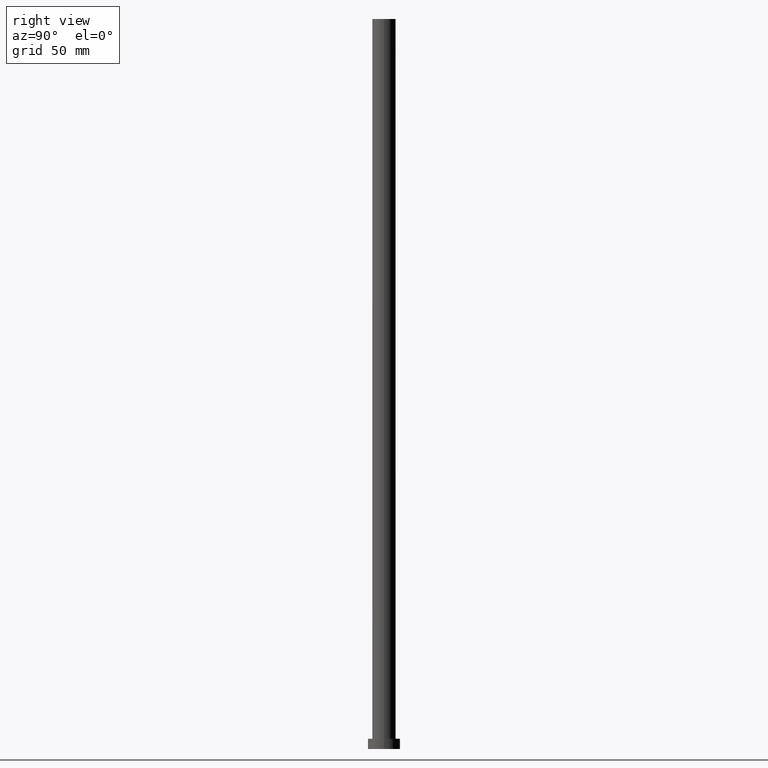
[diagram: clean part render]
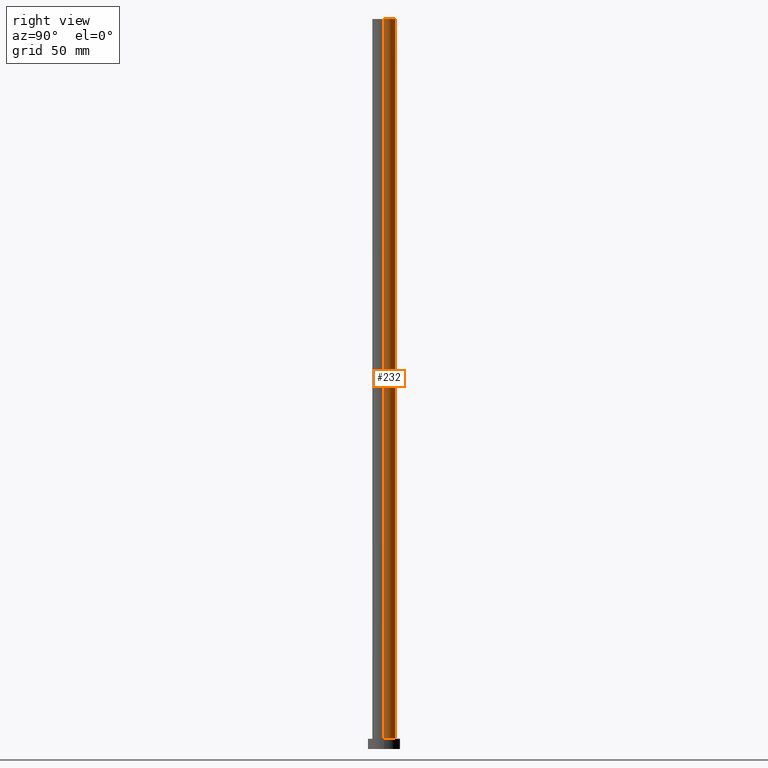
[diagram: same view with one face highlighted and labeled with its STEP entity id]
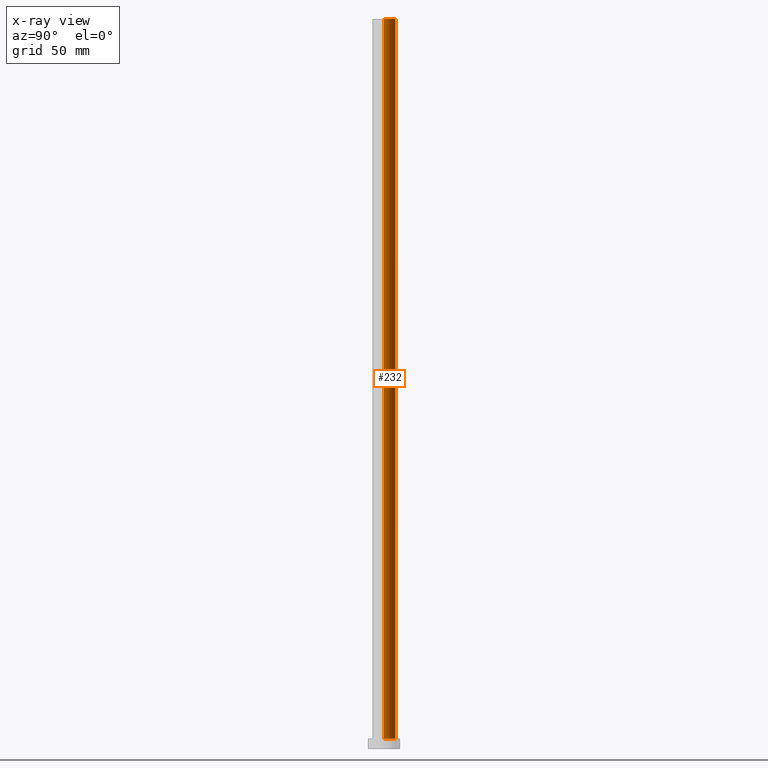
[diagram: x-ray of the same camera — body ghosted, the highlighted face saturated]
A machine part, right view. The second image highlights one B-rep face of the part: STEP entity #232.
The next image is the same camera in x-ray: the body ghosted, the highlighted face saturated — about 0% of this face is hidden behind the body in this view.
In plain terms, the highlighted cylindrical surface (edge-blend (fillet) strip) has radius 8 mm, axis along (-0, -0, -1).
Its self-contained STEP definition (entity closure, byte-faithful):
#15 = DIRECTION ( 'NONE',  ( -0.000000000000000000, -0.000000000000000000, -1.000000000000000000 ) ) ;
#41 = CIRCLE ( 'NONE', #154, 8.000000000000000000 ) ;
#49 = CARTESIAN_POINT ( 'NONE',  ( -8.000000000000000000, 0.000000000000000000, 500.0000000000000000 ) ) ;
#52 = EDGE_CURVE ( 'NONE', #234, #224, #92, .T. ) ;
#56 = ORIENTED_EDGE ( 'NONE', *, *, #78, .T. ) ;
#64 = VERTEX_POINT ( 'NONE', #132 ) ;
#70 = CARTESIAN_POINT ( 'NONE',  ( 0.000000000000000000, 0.000000000000000000, 500.0000000000000000 ) ) ;
#78 = EDGE_CURVE ( 'NONE', #249, #224, #201, .T. ) ;
#91 = DIRECTION ( 'NONE',  ( -0.000000000000000000, -0.000000000000000000, -1.000000000000000000 ) ) ;
#92 = LINE ( 'NONE', #189, #99 ) ;
#98 = ORIENTED_EDGE ( 'NONE', *, *, #110, .T. ) ;
#99 = VECTOR ( 'NONE', #15, 1000.000000000000000 ) ;
#106 = DIRECTION ( 'NONE',  ( 1.000000000000000000, 0.000000000000000000, 0.000000000000000000 ) ) ;
#108 = CARTESIAN_POINT ( 'NONE',  ( 0.000000000000000000, 0.000000000000000000, 7.000000000000000000 ) ) ;
#110 = EDGE_CURVE ( 'NONE', #64, #249, #222, .T. ) ;
#111 = FACE_OUTER_BOUND ( 'NONE', #147, .T. ) ;
#130 = DIRECTION ( 'NONE',  ( 0.000000000000000000, 0.000000000000000000, 1.000000000000000000 ) ) ;
#132 = CARTESIAN_POINT ( 'NONE',  ( 8.000000000000000000, 9.797174393178825657E-16, 500.0000000000000000 ) ) ;
#139 = CARTESIAN_POINT ( 'NONE',  ( 8.000000000000000000, 9.797174393178825657E-16, 7.000000000000000000 ) ) ;
#140 = DIRECTION ( 'NONE',  ( 1.000000000000000000, 0.000000000000000000, 0.000000000000000000 ) ) ;
#145 = DIRECTION ( 'NONE',  ( -0.000000000000000000, -0.000000000000000000, -1.000000000000000000 ) ) ;
#147 = EDGE_LOOP ( 'NONE', ( #157, #98, #56, #208 ) ) ;
#154 = AXIS2_PLACEMENT_3D ( 'NONE', #168, #202, #106 ) ;
#157 = ORIENTED_EDGE ( 'NONE', *, *, #166, .F. ) ;
#166 = EDGE_CURVE ( 'NONE', #64, #234, #41, .T. ) ;
#168 = CARTESIAN_POINT ( 'NONE',  ( 0.000000000000000000, 0.000000000000000000, 500.0000000000000000 ) ) ;
#173 = AXIS2_PLACEMENT_3D ( 'NONE', #108, #130, #140 ) ;
#181 = CARTESIAN_POINT ( 'NONE',  ( 8.000000000000000000, 9.797174393178825657E-16, 500.0000000000000000 ) ) ;
#189 = CARTESIAN_POINT ( 'NONE',  ( -8.000000000000000000, 0.000000000000000000, 500.0000000000000000 ) ) ;
#201 = CIRCLE ( 'NONE', #173, 8.000000000000000000 ) ;
#202 = DIRECTION ( 'NONE',  ( 0.000000000000000000, 0.000000000000000000, 1.000000000000000000 ) ) ;
#203 = CARTESIAN_POINT ( 'NONE',  ( -8.000000000000000000, 0.000000000000000000, 7.000000000000000000 ) ) ;
#208 = ORIENTED_EDGE ( 'NONE', *, *, #52, .F. ) ;
#213 = AXIS2_PLACEMENT_3D ( 'NONE', #70, #145, #229 ) ;
#217 = VECTOR ( 'NONE', #91, 1000.000000000000000 ) ;
#222 = LINE ( 'NONE', #181, #217 ) ;
#224 = VERTEX_POINT ( 'NONE', #203 ) ;
#229 = DIRECTION ( 'NONE',  ( -1.000000000000000000, 0.000000000000000000, 0.000000000000000000 ) ) ;
#232 = ADVANCED_FACE ( 'NONE', ( #111 ), #245, .T. ) ;
#234 = VERTEX_POINT ( 'NONE', #49 ) ;
#245 = CYLINDRICAL_SURFACE ( 'NONE', #213, 8.000000000000000000 ) ;
#249 = VERTEX_POINT ( 'NONE', #139 ) ;